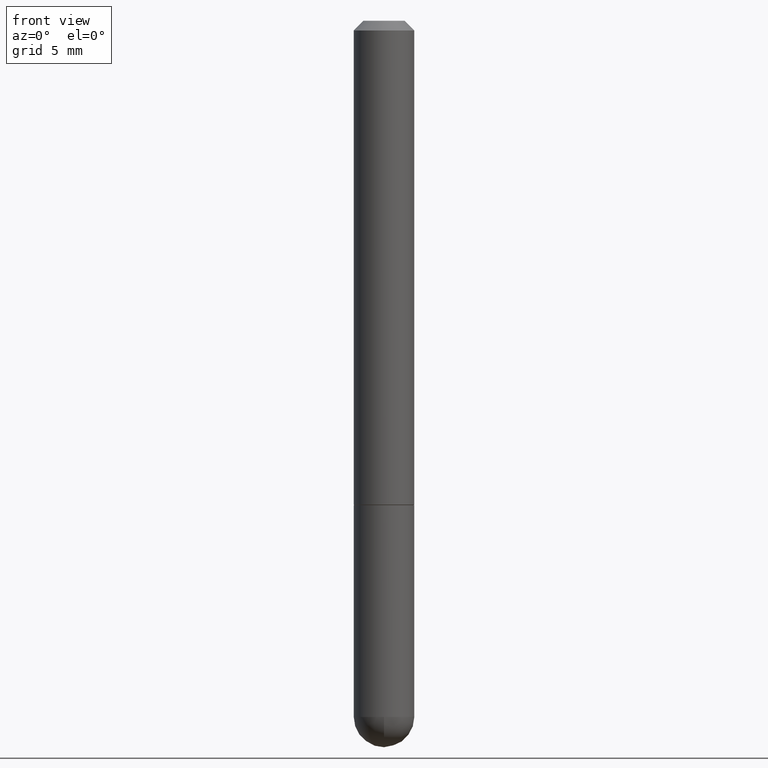
[diagram: clean part render]
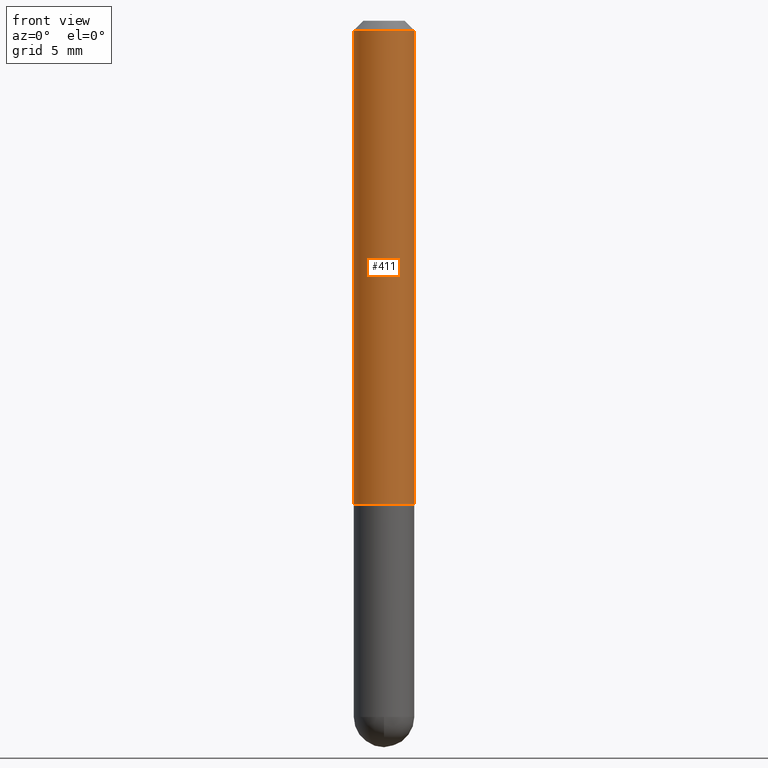
[diagram: same view with one face highlighted and labeled with its STEP entity id]
A machine part, front view. The second image highlights one B-rep face of the part: STEP entity #411.
In plain terms, the highlighted cylindrical surface (edge-blend (fillet) strip) has radius 1.5875 mm, axis along (-0, 0, 1).
Its self-contained STEP definition (entity closure, byte-faithful):
#17 = DIRECTION ( 'NONE',  ( 1.000000000000000000, -6.982962677686266711E-15, 4.876176775795935793E-29 ) ) ;
#30 = AXIS2_PLACEMENT_3D ( 'NONE', #410, #192, #316 ) ;
#33 = VERTEX_POINT ( 'NONE', #63 ) ;
#52 = AXIS2_PLACEMENT_3D ( 'NONE', #299, #146, #264 ) ;
#63 = CARTESIAN_POINT ( 'NONE',  ( 0.06249999999999995143, -4.986107516375835278E-16, -0.02000000000000006981 ) ) ;
#67 = ORIENTED_EDGE ( 'NONE', *, *, #234, .T. ) ;
#77 = EDGE_CURVE ( 'NONE', #343, #203, #110, .T. ) ;
#103 = EDGE_LOOP ( 'NONE', ( #330, #291, #67, #251 ) ) ;
#109 = DIRECTION ( 'NONE',  ( -2.445468806185136877E-29, 3.491481338843145188E-15, 1.000000000000000000 ) ) ;
#110 = CIRCLE ( 'NONE', #30, 0.06250000000000013878 ) ;
#138 = CARTESIAN_POINT ( 'NONE',  ( 0.06250000000000004163, -4.364351673553919652E-16, 3.047610484872461972E-30 ) ) ;
#142 = DIRECTION ( 'NONE',  ( -2.445468806185136877E-29, 3.491481338843145188E-15, 1.000000000000000000 ) ) ;
#146 = DIRECTION ( 'NONE',  ( -2.445468806185136597E-29, 3.491481338843145583E-15, 1.000000000000000000 ) ) ;
#148 = CARTESIAN_POINT ( 'NONE',  ( 0.000000000000000000, 0.000000000000000000, 0.000000000000000000 ) ) ;
#186 = EDGE_CURVE ( 'NONE', #343, #201, #361, .T. ) ;
#192 = DIRECTION ( 'NONE',  ( -2.445468806185136597E-29, 3.491481338843145583E-15, 1.000000000000000000 ) ) ;
#201 = VERTEX_POINT ( 'NONE', #204 ) ;
#203 = VERTEX_POINT ( 'NONE', #252 ) ;
#204 = CARTESIAN_POINT ( 'NONE',  ( -0.06249999999999995143, 3.666055405785281740E-16, -0.02000000000000006981 ) ) ;
#208 = DIRECTION ( 'NONE',  ( -2.445468806185136597E-29, 3.491481338843145583E-15, 1.000000000000000000 ) ) ;
#212 = VECTOR ( 'NONE', #109, 39.37007874015748143 ) ;
#234 = EDGE_CURVE ( 'NONE', #203, #33, #257, .T. ) ;
#236 = FACE_OUTER_BOUND ( 'NONE', #103, .T. ) ;
#251 = ORIENTED_EDGE ( 'NONE', *, *, #312, .F. ) ;
#252 = CARTESIAN_POINT ( 'NONE',  ( 0.06250000000000013878, -3.924425024859695428E-15, -0.9990000000000002212 ) ) ;
#257 = LINE ( 'NONE', #138, #315 ) ;
#264 = DIRECTION ( 'NONE',  ( 1.000000000000000000, -6.982962677686266711E-15, 0.000000000000000000 ) ) ;
#285 = CARTESIAN_POINT ( 'NONE',  ( -0.06250000000000013878, -1.334820532290516771E-15, -0.9990000000000002212 ) ) ;
#291 = ORIENTED_EDGE ( 'NONE', *, *, #77, .T. ) ;
#299 = CARTESIAN_POINT ( 'NONE',  ( 4.890937612370289799E-31, -6.982962677686315028E-17, -0.02000000000000006981 ) ) ;
#309 = CIRCLE ( 'NONE', #52, 0.06249999999999995143 ) ;
#312 = EDGE_CURVE ( 'NONE', #201, #33, #309, .T. ) ;
#315 = VECTOR ( 'NONE', #142, 39.37007874015748143 ) ;
#316 = DIRECTION ( 'NONE',  ( 1.000000000000000000, -6.982962677686270655E-15, 0.000000000000000000 ) ) ;
#330 = ORIENTED_EDGE ( 'NONE', *, *, #186, .F. ) ;
#343 = VERTEX_POINT ( 'NONE', #285 ) ;
#348 = AXIS2_PLACEMENT_3D ( 'NONE', #148, #208, #17 ) ;
#349 = CARTESIAN_POINT ( 'NONE',  ( -0.06250000000000004163, 4.440892098500629120E-16, -3.074334431409318216E-30 ) ) ;
#361 = LINE ( 'NONE', #349, #212 ) ;
#364 = CYLINDRICAL_SURFACE ( 'NONE', #348, 0.06250000000000004163 ) ;
#410 = CARTESIAN_POINT ( 'NONE',  ( 2.443023337378951835E-29, -3.487989857504302970E-15, -0.9990000000000002212 ) ) ;
#411 = ADVANCED_FACE ( 'NONE', ( #236 ), #364, .T. ) ;